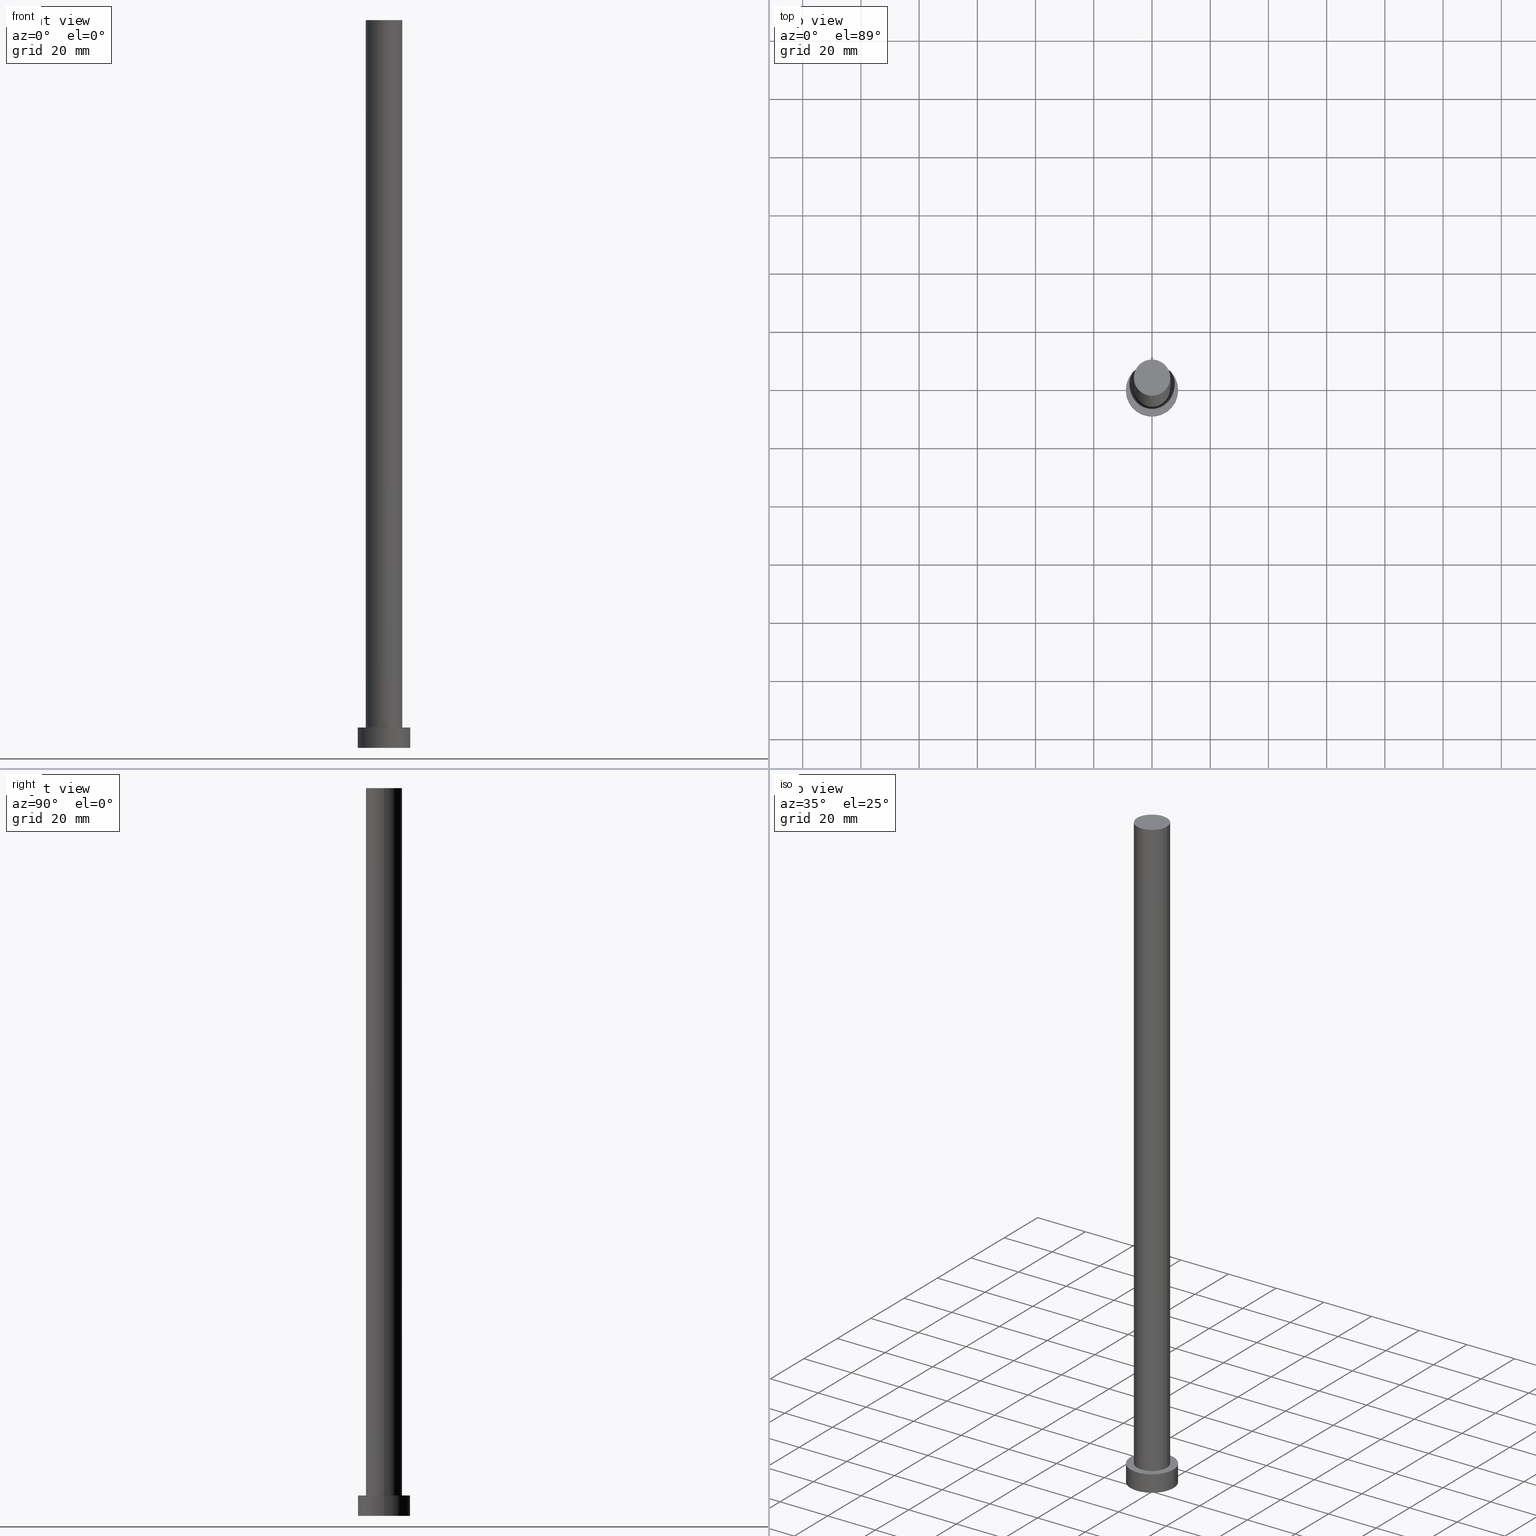
[diagram: canonical four-view strip — front | top / right | iso, engineering-drawing reading convention]
A machine part, canonical four-view strip (front | top / right | iso — engineering-drawing reading convention). The complete STEP part file that produces these views, byte-faithful:
ISO-10303-21;
HEADER;
FILE_DESCRIPTION (( 'STEP AP203' ),
    '1' );
FILE_NAME ('28d8.STEP',
    '2023-02-13T11:37:45',
    ( '' ),
    ( '' ),
    'SwSTEP 2.0',
    'SolidWorks 2019',
    '' );
FILE_SCHEMA (( 'CONFIG_CONTROL_DESIGN' ));
ENDSEC;

DATA;
#1 = DIRECTION ( 'NONE',  ( 1.000000000000000000, 0.000000000000000000, 0.000000000000000000 ) ) ;
#2 = DESIGN_CONTEXT ( 'detailed design', #224, 'design' ) ;
#3 = APPROVAL_PERSON_ORGANIZATION ( #71, #66, #180 ) ;
#4 = ORGANIZATION ( 'NEUR�EN�', 'NEUR�EN�', '' ) ;
#5 = EDGE_LOOP ( 'NONE', ( #194, #68, #101, #219 ) ) ;
#6 = MANIFOLD_SOLID_BREP ( 'P�idat vysunut�m3', #245 ) ;
#7 = DIRECTION ( 'NONE',  ( 0.000000000000000000, 0.000000000000000000, 1.000000000000000000 ) ) ;
#8 = COORDINATED_UNIVERSAL_TIME_OFFSET ( 1, 0, .AHEAD. ) ;
#9 = ORIENTED_EDGE ( 'NONE', *, *, #191, .T. ) ;
#10 = PERSON_AND_ORGANIZATION_ROLE ( 'creator' ) ;
#11 = FACE_OUTER_BOUND ( 'NONE', #164, .T. ) ;
#12 = DATE_AND_TIME ( #238, #233 ) ;
#13 = DIRECTION ( 'NONE',  ( 1.000000000000000000, 0.000000000000000000, -0.000000000000000000 ) ) ;
#14 = CARTESIAN_POINT ( 'NONE',  ( 9.000000000000000000, 1.102182119232617714E-15, 7.000000000000000000 ) ) ;
#15 = DIRECTION ( 'NONE',  ( 0.000000000000000000, 0.000000000000000000, 1.000000000000000000 ) ) ;
#16 = ADVANCED_FACE ( 'NONE', ( #244 ), #33, .T. ) ;
#17 = ORIENTED_EDGE ( 'NONE', *, *, #130, .F. ) ;
#18 = CC_DESIGN_PERSON_AND_ORGANIZATION_ASSIGNMENT ( #67, #128, ( #49 ) ) ;
#19 = ORIENTED_EDGE ( 'NONE', *, *, #117, .F. ) ;
#20 = ORIENTED_EDGE ( 'NONE', *, *, #251, .F. ) ;
#21 = CC_DESIGN_DATE_AND_TIME_ASSIGNMENT ( #150, #45, ( #49 ) ) ;
#22 = CIRCLE ( 'NONE', #137, 9.000000000000000000 ) ;
#23 = EDGE_LOOP ( 'NONE', ( #175, #9, #147, #104 ) ) ;
#24 = APPROVAL_DATE_TIME ( #196, #66 ) ;
#25 = CARTESIAN_POINT ( 'NONE',  ( 6.250000000000000000, 7.654042494670957606E-16, 7.000000000000000000 ) ) ;
#26 = PERSON_AND_ORGANIZATION ( #135, #4 ) ;
#27 = DIRECTION ( 'NONE',  ( -1.000000000000000000, 0.000000000000000000, 0.000000000000000000 ) ) ;
#28 = APPROVAL_ROLE ( '' ) ;
#29 = CC_DESIGN_PERSON_AND_ORGANIZATION_ASSIGNMENT ( #240, #64, ( #236 ) ) ;
#30 = DIRECTION ( 'NONE',  ( 0.000000000000000000, 0.000000000000000000, 1.000000000000000000 ) ) ;
#31 = CIRCLE ( 'NONE', #37, 9.000000000000000000 ) ;
#32 = EDGE_LOOP ( 'NONE', ( #47, #229 ) ) ;
#33 = PLANE ( 'NONE',  #148 ) ;
#34 = DIRECTION ( 'NONE',  ( -1.000000000000000000, 0.000000000000000000, 0.000000000000000000 ) ) ;
#35 = CARTESIAN_POINT ( 'NONE',  ( -6.250000000000000000, 0.000000000000000000, 7.000000000000000000 ) ) ;
#36 = DIRECTION ( 'NONE',  ( 1.000000000000000000, 0.000000000000000000, 0.000000000000000000 ) ) ;
#37 = AXIS2_PLACEMENT_3D ( 'NONE', #118, #133, #36 ) ;
#38 = EDGE_LOOP ( 'NONE', ( #41, #19 ) ) ;
#39 = ADVANCED_FACE ( 'NONE', ( #182 ), #217, .T. ) ;
#40 = CARTESIAN_POINT ( 'NONE',  ( 0.000000000000000000, 0.000000000000000000, 0.000000000000000000 ) ) ;
#41 = ORIENTED_EDGE ( 'NONE', *, *, #172, .F. ) ;
#42 = ORIENTED_EDGE ( 'NONE', *, *, #209, .T. ) ;
#43 = SHAPE_DEFINITION_REPRESENTATION ( #208, #156 ) ;
#44 = ORIENTED_EDGE ( 'NONE', *, *, #254, .T. ) ;
#45 = DATE_TIME_ROLE ( 'classification_date' ) ;
#46 = DIRECTION ( 'NONE',  ( -0.000000000000000000, -0.000000000000000000, -1.000000000000000000 ) ) ;
#47 = ORIENTED_EDGE ( 'NONE', *, *, #114, .T. ) ;
#48 = DIRECTION ( 'NONE',  ( -0.000000000000000000, -0.000000000000000000, -1.000000000000000000 ) ) ;
#49 = SECURITY_CLASSIFICATION ( '', '', #165 ) ;
#50 = ORIENTED_EDGE ( 'NONE', *, *, #200, .F. ) ;
#51 = DIRECTION ( 'NONE',  ( 0.000000000000000000, 0.000000000000000000, 1.000000000000000000 ) ) ;
#52 = DIRECTION ( 'NONE',  ( 1.000000000000000000, 0.000000000000000000, 0.000000000000000000 ) ) ;
#53 = AXIS2_PLACEMENT_3D ( 'NONE', #40, #176, #1 ) ;
#54 = DIRECTION ( 'NONE',  ( 1.000000000000000000, 0.000000000000000000, 0.000000000000000000 ) ) ;
#55 = ADVANCED_FACE ( 'NONE', ( #201 ), #225, .T. ) ;
#56 = DIRECTION ( 'NONE',  ( 1.000000000000000000, 0.000000000000000000, 0.000000000000000000 ) ) ;
#57 = CARTESIAN_POINT ( 'NONE',  ( 0.000000000000000000, 0.000000000000000000, 7.000000000000000000 ) ) ;
#58 = ADVANCED_FACE ( 'NONE', ( #109 ), #129, .T. ) ;
#59 = CC_DESIGN_SECURITY_CLASSIFICATION ( #49, ( #236 ) ) ;
#60 = MECHANICAL_CONTEXT ( 'NONE', #211, 'mechanical' ) ;
#61 = PRODUCT_DEFINITION ( 'NEZN�M�', '', #236, #2 ) ;
#62 = COORDINATED_UNIVERSAL_TIME_OFFSET ( 1, 0, .AHEAD. ) ;
#63 = DIRECTION ( 'NONE',  ( 1.000000000000000000, 0.000000000000000000, -0.000000000000000000 ) ) ;
#64 = PERSON_AND_ORGANIZATION_ROLE ( 'creator' ) ;
#65 = ORIENTED_EDGE ( 'NONE', *, *, #191, .F. ) ;
#66 = APPROVAL ( #93, 'NEUR�EN�' ) ;
#67 = PERSON_AND_ORGANIZATION ( #135, #4 ) ;
#68 = ORIENTED_EDGE ( 'NONE', *, *, #195, .F. ) ;
#69 = APPROVAL_ROLE ( '' ) ;
#70 = VERTEX_POINT ( 'NONE', #187 ) ;
#71 = PERSON_AND_ORGANIZATION ( #135, #4 ) ;
#72 = CC_DESIGN_PERSON_AND_ORGANIZATION_ASSIGNMENT ( #220, #141, ( #236 ) ) ;
#73 = CIRCLE ( 'NONE', #197, 9.000000000000000000 ) ;
#74 = CARTESIAN_POINT ( 'NONE',  ( 0.000000000000000000, 0.000000000000000000, 7.000000000000000000 ) ) ;
#75 = CARTESIAN_POINT ( 'NONE',  ( 0.000000000000000000, 0.000000000000000000, 0.000000000000000000 ) ) ;
#76 = CARTESIAN_POINT ( 'NONE',  ( 0.000000000000000000, 0.000000000000000000, 7.000000000000000000 ) ) ;
#77 = CC_DESIGN_APPROVAL ( #234, ( #61 ) ) ;
#78 = ADVANCED_FACE ( 'NONE', ( #183, #11 ), #203, .T. ) ;
#79 = CYLINDRICAL_SURFACE ( 'NONE', #174, 6.250000000000000000 ) ;
#80 = DIRECTION ( 'NONE',  ( 0.000000000000000000, 0.000000000000000000, 1.000000000000000000 ) ) ;
#81 = LOCAL_TIME ( 12, 37, 45.00000000000000000, #62 ) ;
#82 =( NAMED_UNIT ( * ) SI_UNIT ( $, .STERADIAN. ) SOLID_ANGLE_UNIT ( ) );
#83 = AXIS2_PLACEMENT_3D ( 'NONE', #121, #15, #153 ) ;
#84 = APPROVAL ( #106, 'NEUR�EN�' ) ;
#85 =( GEOMETRIC_REPRESENTATION_CONTEXT ( 3 ) GLOBAL_UNCERTAINTY_ASSIGNED_CONTEXT ( ( #235 ) ) GLOBAL_UNIT_ASSIGNED_CONTEXT ( ( #136, #190, #82 ) ) REPRESENTATION_CONTEXT ( 'NONE', 'WORKASPACE' ) );
#86 = ORIENTED_EDGE ( 'NONE', *, *, #105, .T. ) ;
#87 = APPROVAL_DATE_TIME ( #12, #234 ) ;
#88 = CARTESIAN_POINT ( 'NONE',  ( 9.000000000000000000, 1.102182119232617714E-15, 7.000000000000000000 ) ) ;
#89 = CIRCLE ( 'NONE', #116, 6.250000000000000000 ) ;
#90 = CARTESIAN_POINT ( 'NONE',  ( 0.000000000000000000, 0.000000000000000000, 250.0000000000000000 ) ) ;
#91 = COORDINATED_UNIVERSAL_TIME_OFFSET ( 1, 0, .AHEAD. ) ;
#92 = DIRECTION ( 'NONE',  ( -0.000000000000000000, -0.000000000000000000, -1.000000000000000000 ) ) ;
#93 = APPROVAL_STATUS ( 'not_yet_approved' ) ;
#94 = CARTESIAN_POINT ( 'NONE',  ( 0.000000000000000000, 0.000000000000000000, 250.0000000000000000 ) ) ;
#95 = AXIS2_PLACEMENT_3D ( 'NONE', #90, #48, #242 ) ;
#96 = PRODUCT_RELATED_PRODUCT_CATEGORY ( 'detail', '', ( #99 ) ) ;
#97 = FACE_OUTER_BOUND ( 'NONE', #38, .T. ) ;
#98 = VECTOR ( 'NONE', #210, 1000.000000000000000 ) ;
#99 = PRODUCT ( '28d8', '28d8', '', ( #60 ) ) ;
#100 = CC_DESIGN_PERSON_AND_ORGANIZATION_ASSIGNMENT ( #184, #10, ( #61 ) ) ;
#101 = ORIENTED_EDGE ( 'NONE', *, *, #130, .T. ) ;
#102 = VERTEX_POINT ( 'NONE', #199 ) ;
#103 = CIRCLE ( 'NONE', #246, 9.000000000000000000 ) ;
#104 = ORIENTED_EDGE ( 'NONE', *, *, #209, .F. ) ;
#105 = EDGE_CURVE ( 'NONE', #123, #139, #111, .T. ) ;
#106 = APPROVAL_STATUS ( 'not_yet_approved' ) ;
#107 = DIRECTION ( 'NONE',  ( 1.000000000000000000, 0.000000000000000000, 0.000000000000000000 ) ) ;
#108 = COORDINATED_UNIVERSAL_TIME_OFFSET ( 1, 0, .AHEAD. ) ;
#109 = FACE_OUTER_BOUND ( 'NONE', #23, .T. ) ;
#110 = CC_DESIGN_APPROVAL ( #66, ( #236 ) ) ;
#111 = LINE ( 'NONE', #14, #158 ) ;
#112 = PERSON_AND_ORGANIZATION_ROLE ( 'design_owner' ) ;
#113 = VERTEX_POINT ( 'NONE', #25 ) ;
#114 = EDGE_CURVE ( 'NONE', #102, #215, #222, .T. ) ;
#115 = DIRECTION ( 'NONE',  ( -0.000000000000000000, -0.000000000000000000, -1.000000000000000000 ) ) ;
#116 = AXIS2_PLACEMENT_3D ( 'NONE', #173, #80, #249 ) ;
#117 = EDGE_CURVE ( 'NONE', #139, #204, #103, .T. ) ;
#118 = CARTESIAN_POINT ( 'NONE',  ( 0.000000000000000000, 0.000000000000000000, 7.000000000000000000 ) ) ;
#119 = CIRCLE ( 'NONE', #170, 6.250000000000000000 ) ;
#120 = CC_DESIGN_PERSON_AND_ORGANIZATION_ASSIGNMENT ( #26, #112, ( #99 ) ) ;
#121 = CARTESIAN_POINT ( 'NONE',  ( 0.000000000000000000, 0.000000000000000000, 0.000000000000000000 ) ) ;
#122 = APPLICATION_PROTOCOL_DEFINITION ( 'international standard', 'config_control_design', 1994, #211 ) ;
#123 = VERTEX_POINT ( 'NONE', #88 ) ;
#124 = AXIS2_PLACEMENT_3D ( 'NONE', #126, #30, #63 ) ;
#125 = APPROVAL_PERSON_ORGANIZATION ( #227, #84, #69 ) ;
#126 = CARTESIAN_POINT ( 'NONE',  ( 0.000000000000000000, 0.000000000000000000, 7.000000000000000000 ) ) ;
#127 = DIRECTION ( 'NONE',  ( 0.000000000000000000, 0.000000000000000000, 1.000000000000000000 ) ) ;
#128 = PERSON_AND_ORGANIZATION_ROLE ( 'classification_officer' ) ;
#129 = CYLINDRICAL_SURFACE ( 'NONE', #95, 6.250000000000000000 ) ;
#130 = EDGE_CURVE ( 'NONE', #70, #204, #161, .T. ) ;
#131 = DIRECTION ( 'NONE',  ( 0.000000000000000000, 0.000000000000000000, 1.000000000000000000 ) ) ;
#132 = ORIENTED_EDGE ( 'NONE', *, *, #195, .T. ) ;
#133 = DIRECTION ( 'NONE',  ( 0.000000000000000000, 0.000000000000000000, 1.000000000000000000 ) ) ;
#134 = LINE ( 'NONE', #155, #98 ) ;
#135 = PERSON ( 'NEUR�EN�', 'NEUR�EN�', 'NEUR�EN�', ('NEUR�EN�'), ('NEUR�EN�'), ('NEUR�EN�') ) ;
#136 =( LENGTH_UNIT ( ) NAMED_UNIT ( * ) SI_UNIT ( .MILLI., .METRE. ) );
#137 = AXIS2_PLACEMENT_3D ( 'NONE', #57, #232, #52 ) ;
#138 = EDGE_LOOP ( 'NONE', ( #65, #239, #42, #44 ) ) ;
#139 = VERTEX_POINT ( 'NONE', #169 ) ;
#140 = EDGE_CURVE ( 'NONE', #215, #102, #89, .T. ) ;
#141 = PERSON_AND_ORGANIZATION_ROLE ( 'design_supplier' ) ;
#142 = DIRECTION ( 'NONE',  ( 1.000000000000000000, 0.000000000000000000, 0.000000000000000000 ) ) ;
#143 = DATE_AND_TIME ( #223, #81 ) ;
#144 = DIRECTION ( 'NONE',  ( -0.000000000000000000, -0.000000000000000000, -1.000000000000000000 ) ) ;
#145 = ADVANCED_FACE ( 'NONE', ( #207 ), #79, .T. ) ;
#146 = APPROVAL_DATE_TIME ( #243, #84 ) ;
#147 = ORIENTED_EDGE ( 'NONE', *, *, #200, .T. ) ;
#148 = AXIS2_PLACEMENT_3D ( 'NONE', #185, #127, #13 ) ;
#149 = LOCAL_TIME ( 12, 37, 45.00000000000000000, #218 ) ;
#150 = DATE_AND_TIME ( #247, #226 ) ;
#151 = DIRECTION ( 'NONE',  ( 1.000000000000000000, 0.000000000000000000, 0.000000000000000000 ) ) ;
#152 = CIRCLE ( 'NONE', #213, 6.250000000000000000 ) ;
#153 = DIRECTION ( 'NONE',  ( 1.000000000000000000, 0.000000000000000000, -0.000000000000000000 ) ) ;
#154 = CARTESIAN_POINT ( 'NONE',  ( -9.000000000000000000, 0.000000000000000000, 0.000000000000000000 ) ) ;
#155 = CARTESIAN_POINT ( 'NONE',  ( -6.250000000000000000, 0.000000000000000000, 250.0000000000000000 ) ) ;
#156 = ADVANCED_BREP_SHAPE_REPRESENTATION ( '28d8', ( #6, #53 ), #85 ) ;
#157 = ADVANCED_FACE ( 'NONE', ( #97 ), #255, .F. ) ;
#158 = VECTOR ( 'NONE', #92, 1000.000000000000000 ) ;
#159 = PERSON_AND_ORGANIZATION ( #135, #4 ) ;
#160 = CARTESIAN_POINT ( 'NONE',  ( 0.000000000000000000, 0.000000000000000000, 7.000000000000000000 ) ) ;
#161 = LINE ( 'NONE', #241, #186 ) ;
#162 = DATE_TIME_ROLE ( 'creation_date' ) ;
#163 = CALENDAR_DATE ( 2023, 13, 2 ) ;
#164 = EDGE_LOOP ( 'NONE', ( #132, #179 ) ) ;
#165 = SECURITY_CLASSIFICATION_LEVEL ( 'unclassified' ) ;
#166 = AXIS2_PLACEMENT_3D ( 'NONE', #74, #144, #27 ) ;
#167 = ORIENTED_EDGE ( 'NONE', *, *, #117, .T. ) ;
#168 = VECTOR ( 'NONE', #206, 1000.000000000000000 ) ;
#169 = CARTESIAN_POINT ( 'NONE',  ( 9.000000000000000000, 1.102182119232617714E-15, 0.000000000000000000 ) ) ;
#170 = AXIS2_PLACEMENT_3D ( 'NONE', #76, #189, #151 ) ;
#171 = CARTESIAN_POINT ( 'NONE',  ( 6.250000000000000000, 7.654042494670957606E-16, 250.0000000000000000 ) ) ;
#172 = EDGE_CURVE ( 'NONE', #204, #139, #73, .T. ) ;
#173 = CARTESIAN_POINT ( 'NONE',  ( 0.000000000000000000, 0.000000000000000000, 250.0000000000000000 ) ) ;
#174 = AXIS2_PLACEMENT_3D ( 'NONE', #252, #212, #34 ) ;
#175 = ORIENTED_EDGE ( 'NONE', *, *, #140, .F. ) ;
#176 = DIRECTION ( 'NONE',  ( 0.000000000000000000, 0.000000000000000000, 1.000000000000000000 ) ) ;
#177 = EDGE_LOOP ( 'NONE', ( #20, #86, #167, #17 ) ) ;
#178 = AXIS2_PLACEMENT_3D ( 'NONE', #94, #131, #107 ) ;
#179 = ORIENTED_EDGE ( 'NONE', *, *, #251, .T. ) ;
#180 = APPROVAL_ROLE ( '' ) ;
#181 = CARTESIAN_POINT ( 'NONE',  ( 0.000000000000000000, 0.000000000000000000, 0.000000000000000000 ) ) ;
#182 = FACE_OUTER_BOUND ( 'NONE', #177, .T. ) ;
#183 = FACE_BOUND ( 'NONE', #205, .T. ) ;
#184 = PERSON_AND_ORGANIZATION ( #135, #4 ) ;
#185 = CARTESIAN_POINT ( 'NONE',  ( 0.000000000000000000, 0.000000000000000000, 250.0000000000000000 ) ) ;
#186 = VECTOR ( 'NONE', #46, 1000.000000000000000 ) ;
#187 = CARTESIAN_POINT ( 'NONE',  ( -9.000000000000000000, 0.000000000000000000, 7.000000000000000000 ) ) ;
#188 = CARTESIAN_POINT ( 'NONE',  ( 0.000000000000000000, 0.000000000000000000, 7.000000000000000000 ) ) ;
#189 = DIRECTION ( 'NONE',  ( 0.000000000000000000, 0.000000000000000000, 1.000000000000000000 ) ) ;
#190 =( NAMED_UNIT ( * ) PLANE_ANGLE_UNIT ( ) SI_UNIT ( $, .RADIAN. ) );
#191 = EDGE_CURVE ( 'NONE', #215, #113, #230, .T. ) ;
#192 = AXIS2_PLACEMENT_3D ( 'NONE', #160, #115, #221 ) ;
#193 = APPROVAL_PERSON_ORGANIZATION ( #159, #234, #28 ) ;
#194 = ORIENTED_EDGE ( 'NONE', *, *, #105, .F. ) ;
#195 = EDGE_CURVE ( 'NONE', #70, #123, #31, .T. ) ;
#196 = DATE_AND_TIME ( #216, #214 ) ;
#197 = AXIS2_PLACEMENT_3D ( 'NONE', #75, #51, #56 ) ;
#198 = APPLICATION_PROTOCOL_DEFINITION ( 'international standard', 'config_control_design', 1994, #224 ) ;
#199 = CARTESIAN_POINT ( 'NONE',  ( -6.250000000000000000, 0.000000000000000000, 250.0000000000000000 ) ) ;
#200 = EDGE_CURVE ( 'NONE', #113, #237, #152, .T. ) ;
#201 = FACE_OUTER_BOUND ( 'NONE', #5, .T. ) ;
#202 = APPROVAL_STATUS ( 'not_yet_approved' ) ;
#203 = PLANE ( 'NONE',  #124 ) ;
#204 = VERTEX_POINT ( 'NONE', #154 ) ;
#205 = EDGE_LOOP ( 'NONE', ( #248, #50 ) ) ;
#206 = DIRECTION ( 'NONE',  ( -0.000000000000000000, -0.000000000000000000, -1.000000000000000000 ) ) ;
#207 = FACE_OUTER_BOUND ( 'NONE', #138, .T. ) ;
#208 = PRODUCT_DEFINITION_SHAPE ( 'NONE', 'NONE',  #61 ) ;
#209 = EDGE_CURVE ( 'NONE', #102, #237, #134, .T. ) ;
#210 = DIRECTION ( 'NONE',  ( -0.000000000000000000, -0.000000000000000000, -1.000000000000000000 ) ) ;
#211 = APPLICATION_CONTEXT ( 'configuration controlled 3d designs of mechanical parts and assemblies' ) ;
#212 = DIRECTION ( 'NONE',  ( -0.000000000000000000, -0.000000000000000000, -1.000000000000000000 ) ) ;
#213 = AXIS2_PLACEMENT_3D ( 'NONE', #188, #250, #54 ) ;
#214 = LOCAL_TIME ( 12, 37, 45.00000000000000000, #108 ) ;
#215 = VERTEX_POINT ( 'NONE', #171 ) ;
#216 = CALENDAR_DATE ( 2023, 13, 2 ) ;
#217 = CYLINDRICAL_SURFACE ( 'NONE', #192, 9.000000000000000000 ) ;
#218 = COORDINATED_UNIVERSAL_TIME_OFFSET ( 1, 0, .AHEAD. ) ;
#219 = ORIENTED_EDGE ( 'NONE', *, *, #172, .T. ) ;
#220 = PERSON_AND_ORGANIZATION ( #135, #4 ) ;
#221 = DIRECTION ( 'NONE',  ( -1.000000000000000000, 0.000000000000000000, 0.000000000000000000 ) ) ;
#222 = CIRCLE ( 'NONE', #178, 6.250000000000000000 ) ;
#223 = CALENDAR_DATE ( 2023, 13, 2 ) ;
#224 = APPLICATION_CONTEXT ( 'configuration controlled 3d designs of mechanical parts and assemblies' ) ;
#225 = CYLINDRICAL_SURFACE ( 'NONE', #166, 9.000000000000000000 ) ;
#226 = LOCAL_TIME ( 12, 37, 45.00000000000000000, #91 ) ;
#227 = PERSON_AND_ORGANIZATION ( #135, #4 ) ;
#228 = CC_DESIGN_DATE_AND_TIME_ASSIGNMENT ( #143, #162, ( #61 ) ) ;
#229 = ORIENTED_EDGE ( 'NONE', *, *, #140, .T. ) ;
#230 = LINE ( 'NONE', #231, #168 ) ;
#231 = CARTESIAN_POINT ( 'NONE',  ( 6.250000000000000000, 7.654042494670957606E-16, 250.0000000000000000 ) ) ;
#232 = DIRECTION ( 'NONE',  ( 0.000000000000000000, 0.000000000000000000, 1.000000000000000000 ) ) ;
#233 = LOCAL_TIME ( 12, 37, 45.00000000000000000, #8 ) ;
#234 = APPROVAL ( #202, 'NEUR�EN�' ) ;
#235 = UNCERTAINTY_MEASURE_WITH_UNIT (LENGTH_MEASURE( 1.000000000000000082E-05 ), #136, 'distance_accuracy_value', 'NONE');
#236 = PRODUCT_DEFINITION_FORMATION_WITH_SPECIFIED_SOURCE ( 'LIBOVOLN�', '', #99, .NOT_KNOWN. ) ;
#237 = VERTEX_POINT ( 'NONE', #35 ) ;
#238 = CALENDAR_DATE ( 2023, 13, 2 ) ;
#239 = ORIENTED_EDGE ( 'NONE', *, *, #114, .F. ) ;
#240 = PERSON_AND_ORGANIZATION ( #135, #4 ) ;
#241 = CARTESIAN_POINT ( 'NONE',  ( -9.000000000000000000, 0.000000000000000000, 7.000000000000000000 ) ) ;
#242 = DIRECTION ( 'NONE',  ( -1.000000000000000000, 0.000000000000000000, 0.000000000000000000 ) ) ;
#243 = DATE_AND_TIME ( #163, #149 ) ;
#244 = FACE_OUTER_BOUND ( 'NONE', #32, .T. ) ;
#245 = CLOSED_SHELL ( 'NONE', ( #58, #39, #55, #78, #157, #145, #16 ) ) ;
#246 = AXIS2_PLACEMENT_3D ( 'NONE', #181, #7, #142 ) ;
#247 = CALENDAR_DATE ( 2023, 13, 2 ) ;
#248 = ORIENTED_EDGE ( 'NONE', *, *, #254, .F. ) ;
#249 = DIRECTION ( 'NONE',  ( 1.000000000000000000, 0.000000000000000000, 0.000000000000000000 ) ) ;
#250 = DIRECTION ( 'NONE',  ( 0.000000000000000000, 0.000000000000000000, 1.000000000000000000 ) ) ;
#251 = EDGE_CURVE ( 'NONE', #123, #70, #22, .T. ) ;
#252 = CARTESIAN_POINT ( 'NONE',  ( 0.000000000000000000, 0.000000000000000000, 250.0000000000000000 ) ) ;
#253 = CC_DESIGN_APPROVAL ( #84, ( #49 ) ) ;
#254 = EDGE_CURVE ( 'NONE', #237, #113, #119, .T. ) ;
#255 = PLANE ( 'NONE',  #83 ) ;
ENDSEC;
END-ISO-10303-21;
